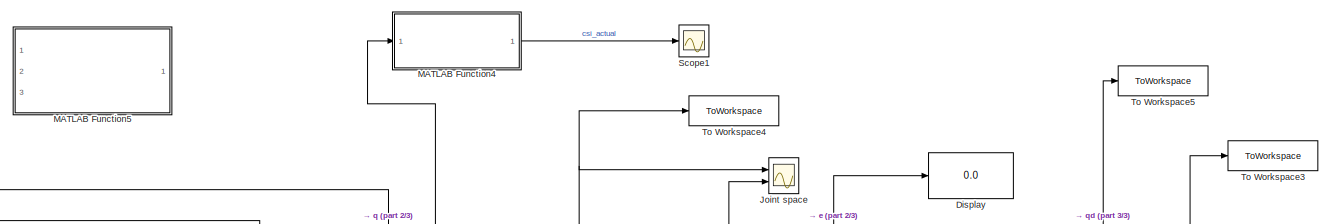
[diagram: root canvas - part 1/3, top center region]
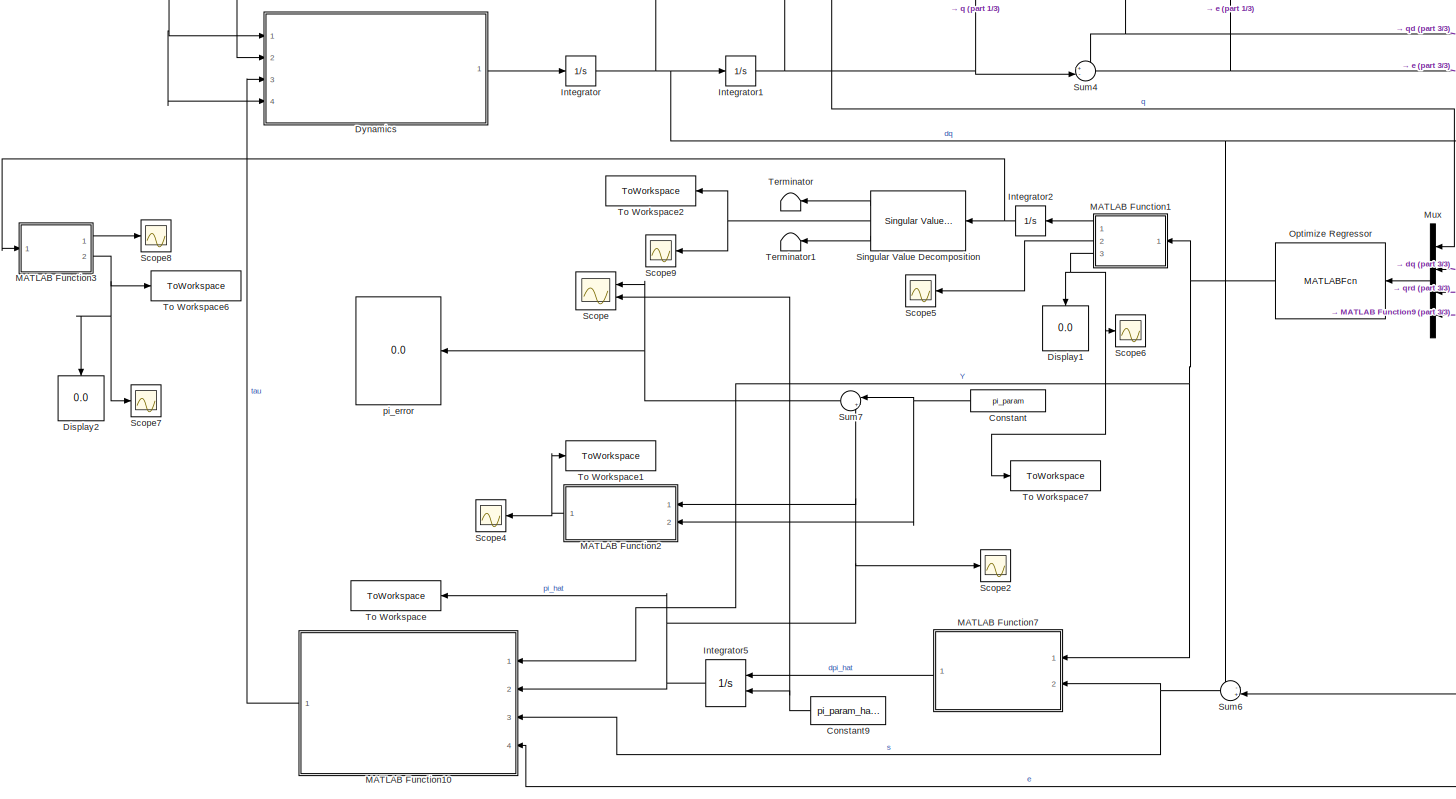
[diagram: root canvas - part 2/3, left side, full height]
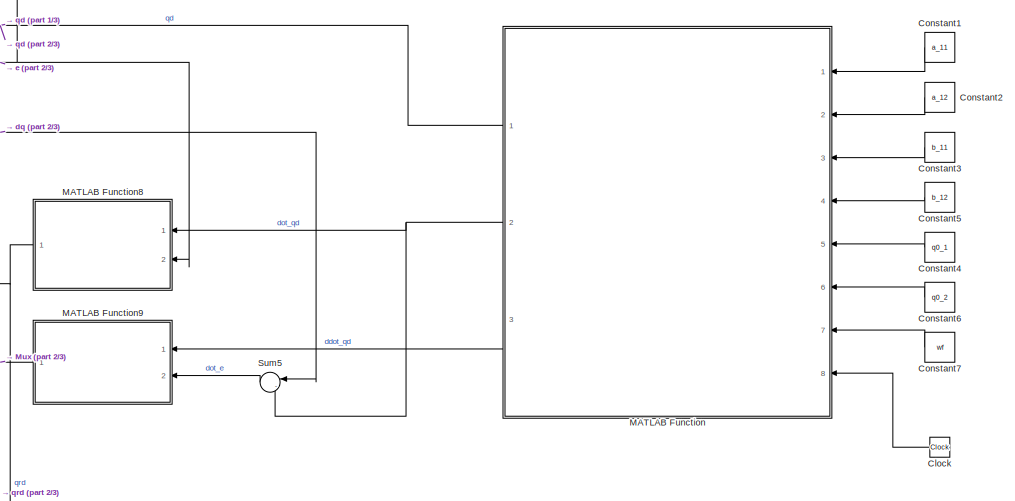
[diagram: root canvas - part 3/3, middle right region]
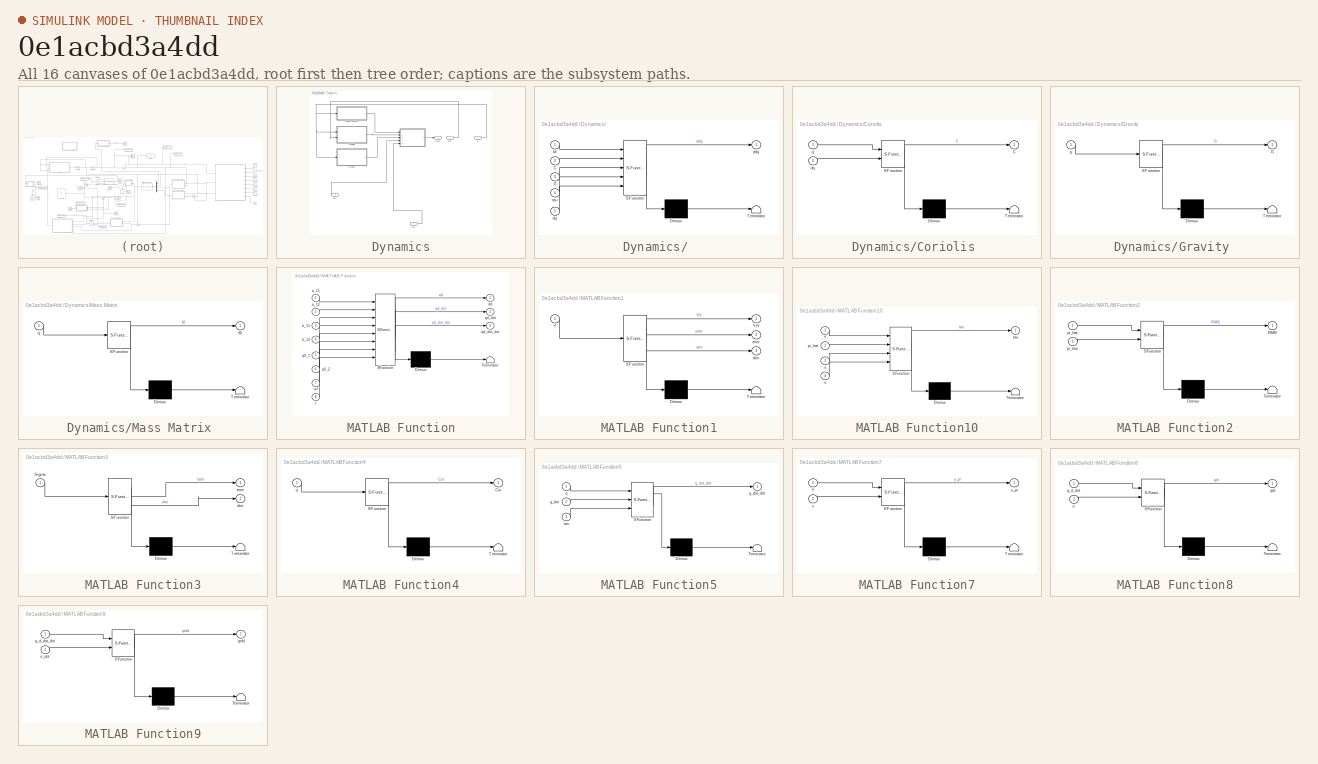
[diagram: thumbnail index - all 16 canvases of the model, root first then tree order]
MODEL slx_0e1acbd3a4dd
KIND model
CONFIG AbsTol = auto
CONFIG EnableMultiTasking = off
CONFIG FixedStep = 1e-2
CONFIG MaxStep = auto
CONFIG MinStep = auto
CONFIG RelTol = 1e-3
CONFIG SampleTimeConstraint = Unconstrained
CONFIG Solver = VariableStepAuto
CONFIG SolverName = VariableStepAuto
CONFIG StartTime = 0.0
CONFIG StopTime = 1000
BLOCK [Clock] Clock
BLOCK [Constant] Constant
  Value = pi_param
BLOCK [Constant] Constant1
  Value = a_11
BLOCK [Constant] Constant2
  Value = a_12
BLOCK [Constant] Constant3
  Value = b_11
BLOCK [Constant] Constant4
  Value = q0_1
BLOCK [Constant] Constant5
  Value = b_12
BLOCK [Constant] Constant6
  Value = q0_2
BLOCK [Constant] Constant7
  Value = wf
BLOCK [Constant] Constant9
  Value = pi_param_hat_0
BLOCK [Display] Display
  Decimation = 1
  Ports = [1]
BLOCK [Display] Display1
  Decimation = 1
  Ports = [1]
BLOCK [Display] Display2
  Decimation = 1
  Ports = [1]
BLOCK [SubSystem] Dynamics
  Ports = [4, 1]
  RequestExecContextInheritance = off
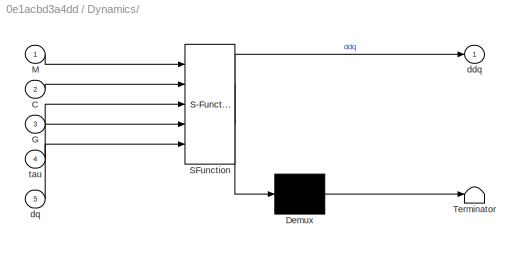
BLOCK [SubSystem] Dynamics/ 
  ErrorFcn = Stateflow.Translate.translate
  PermitHierarchicalResolution = ExplicitOnly
  Ports = [5, 1]
  RequestExecContextInheritance = off
  SFBlockType = MATLAB Function
  TreatAsAtomicUnit = on
BLOCK [Demux] Dynamics/ / Demux 
  DisplayOption = bar
  Outputs = 1
  Ports = [1, 1]
BLOCK [S-Function] Dynamics/ / SFunction 
  EnableBusSupport = on
  FunctionName = sf_sfun
  PortCounts = [5 2]
  Ports = [5, 2]
  SFcnIsStateOwnerBlock = off
  SFunctionDeploymentMode = off
  Tag = Stateflow S-Function 8
BLOCK [Terminator] Dynamics/ / Terminator 
BLOCK [Inport] Dynamics/ /C
  IconDisplay = Port number
  Port = 2
BLOCK [Inport] Dynamics/ /G
  IconDisplay = Port number
  Port = 3
BLOCK [Inport] Dynamics/ /M
  IconDisplay = Port number
BLOCK [Outport] Dynamics/ /ddq
  IconDisplay = Port number
BLOCK [Inport] Dynamics/ /dq
  IconDisplay = Port number
  Port = 5
BLOCK [Inport] Dynamics/ /tau
  IconDisplay = Port number
  Port = 4
BLOCK [SubSystem] Dynamics/Coriolis 
  ErrorFcn = Stateflow.Translate.translate
  PermitHierarchicalResolution = ExplicitOnly
  Ports = [2, 1]
  RequestExecContextInheritance = off
  SFBlockType = MATLAB Function
  TreatAsAtomicUnit = on
BLOCK [Demux] Dynamics/Coriolis / Demux 
  DisplayOption = bar
  Outputs = 1
  Ports = [1, 1]
BLOCK [S-Function] Dynamics/Coriolis / SFunction 
  EnableBusSupport = on
  FunctionName = sf_sfun
  PortCounts = [2 2]
  Ports = [2, 2]
  SFcnIsStateOwnerBlock = off
  SFunctionDeploymentMode = off
  Tag = Stateflow S-Function 6
BLOCK [Terminator] Dynamics/Coriolis / Terminator 
BLOCK [Outport] Dynamics/Coriolis /C
  IconDisplay = Port number
BLOCK [Inport] Dynamics/Coriolis /dq
  IconDisplay = Port number
  Port = 2
BLOCK [Inport] Dynamics/Coriolis /q
  IconDisplay = Port number
BLOCK [SubSystem] Dynamics/Gravity 
  ErrorFcn = Stateflow.Translate.translate
  PermitHierarchicalResolution = ExplicitOnly
  Ports = [1, 1]
  RequestExecContextInheritance = off
  SFBlockType = MATLAB Function
  TreatAsAtomicUnit = on
BLOCK [Demux] Dynamics/Gravity / Demux 
  DisplayOption = bar
  Outputs = 1
  Ports = [1, 1]
BLOCK [S-Function] Dynamics/Gravity / SFunction 
  EnableBusSupport = on
  FunctionName = sf_sfun
  PortCounts = [1 2]
  Ports = [1, 2]
  SFcnIsStateOwnerBlock = off
  SFunctionDeploymentMode = off
  Tag = Stateflow S-Function 7
BLOCK [Terminator] Dynamics/Gravity / Terminator 
BLOCK [Outport] Dynamics/Gravity /G
  IconDisplay = Port number
BLOCK [Inport] Dynamics/Gravity /q
  IconDisplay = Port number
BLOCK [SubSystem] Dynamics/Mass Matrix 
  ErrorFcn = Stateflow.Translate.translate
  PermitHierarchicalResolution = ExplicitOnly
  Ports = [1, 1]
  RequestExecContextInheritance = off
  SFBlockType = MATLAB Function
  TreatAsAtomicUnit = on
BLOCK [Demux] Dynamics/Mass Matrix / Demux 
  DisplayOption = bar
  Outputs = 1
  Ports = [1, 1]
BLOCK [S-Function] Dynamics/Mass Matrix / SFunction 
  EnableBusSupport = on
  FunctionName = sf_sfun
  PortCounts = [1 2]
  Ports = [1, 2]
  SFcnIsStateOwnerBlock = off
  SFunctionDeploymentMode = off
  Tag = Stateflow S-Function 4
BLOCK [Terminator] Dynamics/Mass Matrix / Terminator 
BLOCK [Outport] Dynamics/Mass Matrix /M
  IconDisplay = Port number
BLOCK [Inport] Dynamics/Mass Matrix /q
  IconDisplay = Port number
BLOCK [Outport] Dynamics/Out1
  IconDisplay = Port number
BLOCK [Inport] Dynamics/d_q
  IconDisplay = Port number
  Port = 4
BLOCK [Inport] Dynamics/dq
  IconDisplay = Port number
BLOCK [Inport] Dynamics/q
  IconDisplay = Port number
  Port = 2
BLOCK [Inport] Dynamics/tau
  IconDisplay = Port number
  Port = 3
BLOCK [Integrator] Integrator
  InitialCondition = qInitial_0
  Ports = [1, 1]
BLOCK [Integrator] Integrator1
  InitialCondition = [0,0]'
  Ports = [1, 1]
BLOCK [Integrator] Integrator2
  Ports = [1, 1]
BLOCK [Integrator] Integrator5
  InitialConditionSource = external
  Ports = [2, 1]
BLOCK [Scope] Joint space
  Floating = off
  NumInputPorts = 2
  Ports = [2]
  ScopeSpecificationString = Simulink.scopes.TimeScopeBlockCfg('CurrentConfiguration', extmgr.ConfigurationSet(extmgr.Configuration('Core','General UI',true,'FigureColor',[0.831372549019608 0.815686274509804 0.784313725490196]),extmgr.Configuration('Core','Source UI',true),extmgr.Configuration('Sources','WiredSimulink',true,'DataLoggingVariableName','ScopeData1'),extmgr.Configuration('Visuals','Time Domain',true,'SerializedDi...<+1944ch>
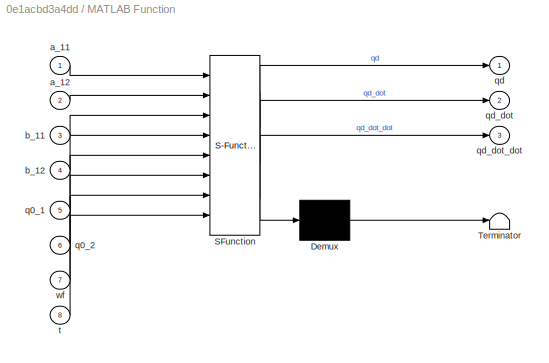
BLOCK [SubSystem] MATLAB Function
  ErrorFcn = Stateflow.Translate.translate
  PermitHierarchicalResolution = ExplicitOnly
  Ports = [8, 3]
  RequestExecContextInheritance = off
  SFBlockType = MATLAB Function
  TreatAsAtomicUnit = on
BLOCK [Demux] MATLAB Function/ Demux 
  DisplayOption = bar
  Outputs = 1
  Ports = [1, 1]
BLOCK [S-Function] MATLAB Function/ SFunction 
  EnableBusSupport = on
  FunctionName = sf_sfun
  PortCounts = [8 4]
  Ports = [8, 4]
  SFcnIsStateOwnerBlock = off
  SFunctionDeploymentMode = off
  Tag = Stateflow S-Function 2
BLOCK [Terminator] MATLAB Function/ Terminator 
BLOCK [Inport] MATLAB Function/a_11
  IconDisplay = Port number
BLOCK [Inport] MATLAB Function/a_12
  IconDisplay = Port number
  Port = 2
BLOCK [Inport] MATLAB Function/b_11
  IconDisplay = Port number
  Port = 3
BLOCK [Inport] MATLAB Function/b_12
  IconDisplay = Port number
  Port = 4
BLOCK [Inport] MATLAB Function/q0_1
  IconDisplay = Port number
  Port = 5
BLOCK [Inport] MATLAB Function/q0_2
  IconDisplay = Port number
  Port = 6
BLOCK [Outport] MATLAB Function/qd
  IconDisplay = Port number
BLOCK [Outport] MATLAB Function/qd_dot
  IconDisplay = Port number
  Port = 2
BLOCK [Outport] MATLAB Function/qd_dot_dot
  IconDisplay = Port number
  Port = 3
BLOCK [Inport] MATLAB Function/t
  IconDisplay = Port number
  Port = 8
BLOCK [Inport] MATLAB Function/wf
  IconDisplay = Port number
  Port = 7
BLOCK [SubSystem] MATLAB Function1
  ErrorFcn = Stateflow.Translate.translate
  PermitHierarchicalResolution = ExplicitOnly
  Ports = [1, 3]
  RequestExecContextInheritance = off
  SFBlockType = MATLAB Function
  TreatAsAtomicUnit = on
BLOCK [Demux] MATLAB Function1/ Demux 
  DisplayOption = bar
  Outputs = 1
  Ports = [1, 1]
BLOCK [S-Function] MATLAB Function1/ SFunction 
  EnableBusSupport = on
  FunctionName = sf_sfun
  PortCounts = [1 4]
  Ports = [1, 4]
  SFcnIsStateOwnerBlock = off
  SFunctionDeploymentMode = off
  Tag = Stateflow S-Function 1
BLOCK [Terminator] MATLAB Function1/ Terminator 
BLOCK [Inport] MATLAB Function1/Y
  IconDisplay = Port number
BLOCK [Outport] MATLAB Function1/YtY
  IconDisplay = Port number
BLOCK [Outport] MATLAB Function1/dim
  IconDisplay = Port number
  Port = 3
BLOCK [Outport] MATLAB Function1/error
  IconDisplay = Port number
  Port = 2
BLOCK [SubSystem] MATLAB Function10
  ErrorFcn = Stateflow.Translate.translate
  PermitHierarchicalResolution = ExplicitOnly
  Ports = [4, 1]
  RequestExecContextInheritance = off
  SFBlockType = MATLAB Function
  TreatAsAtomicUnit = on
BLOCK [Demux] MATLAB Function10/ Demux 
  DisplayOption = bar
  Outputs = 1
  Ports = [1, 1]
BLOCK [S-Function] MATLAB Function10/ SFunction 
  EnableBusSupport = on
  FunctionName = sf_sfun
  PortCounts = [4 2]
  Ports = [4, 2]
  SFcnIsStateOwnerBlock = off
  SFunctionDeploymentMode = off
  Tag = Stateflow S-Function 17
BLOCK [Terminator] MATLAB Function10/ Terminator 
BLOCK [Inport] MATLAB Function10/Y
  IconDisplay = Port number
BLOCK [Inport] MATLAB Function10/e
  IconDisplay = Port number
  Port = 4
BLOCK [Inport] MATLAB Function10/pi_hat
  IconDisplay = Port number
  Port = 2
BLOCK [Inport] MATLAB Function10/s
  IconDisplay = Port number
  Port = 3
BLOCK [Outport] MATLAB Function10/tau
  IconDisplay = Port number
BLOCK [SubSystem] MATLAB Function2
  ErrorFcn = Stateflow.Translate.translate
  PermitHierarchicalResolution = ExplicitOnly
  Ports = [2, 1]
  RequestExecContextInheritance = off
  SFBlockType = MATLAB Function
  TreatAsAtomicUnit = on
BLOCK [Demux] MATLAB Function2/ Demux 
  DisplayOption = bar
  Outputs = 1
  Ports = [1, 1]
BLOCK [S-Function] MATLAB Function2/ SFunction 
  EnableBusSupport = on
  FunctionName = sf_sfun
  PortCounts = [2 2]
  Ports = [2, 2]
  SFcnIsStateOwnerBlock = off
  SFunctionDeploymentMode = off
  Tag = Stateflow S-Function 3
BLOCK [Terminator] MATLAB Function2/ Terminator 
BLOCK [Outport] MATLAB Function2/RMS
  IconDisplay = Port number
BLOCK [Inport] MATLAB Function2/pi_hat
  IconDisplay = Port number
BLOCK [Inport] MATLAB Function2/pi_true
  IconDisplay = Port number
  Port = 2
BLOCK [SubSystem] MATLAB Function3
  ErrorFcn = Stateflow.Translate.translate
  PermitHierarchicalResolution = ExplicitOnly
  Ports = [1, 2]
  RequestExecContextInheritance = off
  SFBlockType = MATLAB Function
  TreatAsAtomicUnit = on
BLOCK [Demux] MATLAB Function3/ Demux 
  DisplayOption = bar
  Outputs = 1
  Ports = [1, 1]
BLOCK [S-Function] MATLAB Function3/ SFunction 
  EnableBusSupport = on
  FunctionName = sf_sfun
  PortCounts = [1 3]
  Ports = [1, 3]
  SFcnIsStateOwnerBlock = off
  SFunctionDeploymentMode = off
  Tag = Stateflow S-Function 9
BLOCK [Terminator] MATLAB Function3/ Terminator 
BLOCK [Inport] MATLAB Function3/Sigma
  IconDisplay = Port number
BLOCK [Outport] MATLAB Function3/dim
  IconDisplay = Port number
  Port = 2
BLOCK [Outport] MATLAB Function3/error
  IconDisplay = Port number
BLOCK [SubSystem] MATLAB Function4
  Commented = on
  ErrorFcn = Stateflow.Translate.translate
  PermitHierarchicalResolution = ExplicitOnly
  Ports = [1, 1]
  RequestExecContextInheritance = off
  SFBlockType = MATLAB Function
  TreatAsAtomicUnit = on
BLOCK [Demux] MATLAB Function4/ Demux 
  DisplayOption = bar
  Outputs = 1
  Ports = [1, 1]
BLOCK [S-Function] MATLAB Function4/ SFunction 
  EnableBusSupport = on
  FunctionName = sf_sfun
  PortCounts = [1 2]
  Ports = [1, 2]
  SFcnIsStateOwnerBlock = off
  SFunctionDeploymentMode = off
  Tag = Stateflow S-Function 13
BLOCK [Terminator] MATLAB Function4/ Terminator 
BLOCK [Outport] MATLAB Function4/Csi
  IconDisplay = Port number
BLOCK [Inport] MATLAB Function4/q
  IconDisplay = Port number
BLOCK [SubSystem] MATLAB Function5
  Commented = on
  ErrorFcn = Stateflow.Translate.translate
  PermitHierarchicalResolution = ExplicitOnly
  Ports = [3, 1]
  RequestExecContextInheritance = off
  SFBlockType = MATLAB Function
  TreatAsAtomicUnit = on
BLOCK [Demux] MATLAB Function5/ Demux 
  DisplayOption = bar
  Outputs = 1
  Ports = [1, 1]
BLOCK [S-Function] MATLAB Function5/ SFunction 
  EnableBusSupport = on
  FunctionName = sf_sfun
  PortCounts = [3 2]
  Ports = [3, 2]
  SFcnIsStateOwnerBlock = off
  SFunctionDeploymentMode = off
  Tag = Stateflow S-Function 5
BLOCK [Terminator] MATLAB Function5/ Terminator 
BLOCK [Inport] MATLAB Function5/q
  IconDisplay = Port number
BLOCK [Inport] MATLAB Function5/q_dot
  IconDisplay = Port number
  Port = 2
BLOCK [Outport] MATLAB Function5/q_dot_dot
  IconDisplay = Port number
BLOCK [Inport] MATLAB Function5/tau
  IconDisplay = Port number
  Port = 3
BLOCK [SubSystem] MATLAB Function7
  ErrorFcn = Stateflow.Translate.translate
  PermitHierarchicalResolution = ExplicitOnly
  Ports = [2, 1]
  RequestExecContextInheritance = off
  SFBlockType = MATLAB Function
  TreatAsAtomicUnit = on
BLOCK [Demux] MATLAB Function7/ Demux 
  DisplayOption = bar
  Outputs = 1
  Ports = [1, 1]
BLOCK [S-Function] MATLAB Function7/ SFunction 
  EnableBusSupport = on
  FunctionName = sf_sfun
  PortCounts = [2 2]
  Ports = [2, 2]
  SFcnIsStateOwnerBlock = off
  SFunctionDeploymentMode = off
  Tag = Stateflow S-Function 21
BLOCK [Terminator] MATLAB Function7/ Terminator 
BLOCK [Inport] MATLAB Function7/Y
  IconDisplay = Port number
BLOCK [Inport] MATLAB Function7/s
  IconDisplay = Port number
  Port = 2
BLOCK [Outport] MATLAB Function7/u_pi
  IconDisplay = Port number
BLOCK [SubSystem] MATLAB Function8
  ErrorFcn = Stateflow.Translate.translate
  PermitHierarchicalResolution = ExplicitOnly
  Ports = [2, 1]
  RequestExecContextInheritance = off
  SFBlockType = MATLAB Function
  TreatAsAtomicUnit = on
BLOCK [Demux] MATLAB Function8/ Demux 
  DisplayOption = bar
  Outputs = 1
  Ports = [1, 1]
BLOCK [S-Function] MATLAB Function8/ SFunction 
  EnableBusSupport = on
  FunctionName = sf_sfun
  PortCounts = [2 2]
  Ports = [2, 2]
  SFcnIsStateOwnerBlock = off
  SFunctionDeploymentMode = off
  Tag = Stateflow S-Function 22
BLOCK [Terminator] MATLAB Function8/ Terminator 
BLOCK [Inport] MATLAB Function8/e
  IconDisplay = Port number
  Port = 2
BLOCK [Inport] MATLAB Function8/q_d_dot
  IconDisplay = Port number
BLOCK [Outport] MATLAB Function8/qrd
  IconDisplay = Port number
BLOCK [SubSystem] MATLAB Function9
  ErrorFcn = Stateflow.Translate.translate
  PermitHierarchicalResolution = ExplicitOnly
  Ports = [2, 1]
  RequestExecContextInheritance = off
  SFBlockType = MATLAB Function
  TreatAsAtomicUnit = on
BLOCK [Demux] MATLAB Function9/ Demux 
  DisplayOption = bar
  Outputs = 1
  Ports = [1, 1]
BLOCK [S-Function] MATLAB Function9/ SFunction 
  EnableBusSupport = on
  FunctionName = sf_sfun
  PortCounts = [2 2]
  Ports = [2, 2]
  SFcnIsStateOwnerBlock = off
  SFunctionDeploymentMode = off
  Tag = Stateflow S-Function 23
BLOCK [Terminator] MATLAB Function9/ Terminator 
BLOCK [Inport] MATLAB Function9/e_dot
  IconDisplay = Port number
  Port = 2
BLOCK [Inport] MATLAB Function9/q_d_dot_dot
  IconDisplay = Port number
BLOCK [Outport] MATLAB Function9/qrdd
  IconDisplay = Port number
BLOCK [Mux] Mux
  DisplayOption = bar
  Ports = [4, 1]
BLOCK [MATLABFcn] Optimize Regressor 
  MATLABFcn = New_Regressor_Simulink
  Output1D = off
  OutputDimensions = [2,6]
  Ports = [1, 1]
BLOCK [Scope] Scope
  Floating = off
  NumInputPorts = 2
  Ports = [2]
  ScopeSpecificationString = Simulink.scopes.TimeScopeBlockCfg('CurrentConfiguration', extmgr.ConfigurationSet(extmgr.Configuration('Core','General UI',true),extmgr.Configuration('Core','Source UI',true),extmgr.Configuration('Sources','WiredSimulink',true,'DataLoggingVariableName','ScopeData1'),extmgr.Configuration('Visuals','Time Domain',true,'SerializedDisplays',{struct('MinYLimReal','-4.26788','MaxYLimReal','4.46359','YLab...<+1833ch>
BLOCK [Scope] Scope1
  Commented = on
  Floating = off
  NumInputPorts = 1
  Ports = [1]
  ScopeSpecificationString = Simulink.scopes.TimeScopeBlockCfg('CurrentConfiguration', extmgr.ConfigurationSet(extmgr.Configuration('Core','General UI',true),extmgr.Configuration('Core','Source UI',true),extmgr.Configuration('Sources','WiredSimulink',true,'DataLoggingVariableName','ScopeData1'),extmgr.Configuration('Visuals','Time Domain',true,'SerializedDisplays',{struct('MinYLimReal','-1.93609','MaxYLimReal','2.43734','YLab...<+1441ch>
BLOCK [Scope] Scope2
  Floating = off
  NumInputPorts = 1
  Ports = [1]
  ScopeSpecificationString = Simulink.scopes.TimeScopeBlockCfg('CurrentConfiguration', extmgr.ConfigurationSet(extmgr.Configuration('Core','General UI',true),extmgr.Configuration('Core','Source UI',true),extmgr.Configuration('Sources','WiredSimulink',true,'DataLoggingVariableName','ScopeData1'),extmgr.Configuration('Visuals','Time Domain',true,'SerializedDisplays',{struct('MinYLimReal','-4.83933','MaxYLimReal','4.39845','YLab...<+1584ch>
BLOCK [Scope] Scope4
  Floating = off
  NumInputPorts = 1
  Ports = [1]
  ScopeSpecificationString = Simulink.scopes.TimeScopeBlockCfg('CurrentConfiguration', extmgr.ConfigurationSet(extmgr.Configuration('Core','General UI',true),extmgr.Configuration('Core','Source UI',true),extmgr.Configuration('Sources','WiredSimulink',true,'DataLoggingVariableName','ScopeData2'),extmgr.Configuration('Visuals','Time Domain',true,'SerializedDisplays',{struct('MinYLimReal','-0.42601','MaxYLimReal','5.46095','YLab...<+1428ch>
BLOCK [Scope] Scope5
  Floating = off
  NumInputPorts = 1
  Ports = [1]
  ScopeSpecificationString = Simulink.scopes.TimeScopeBlockCfg('CurrentConfiguration', extmgr.ConfigurationSet(extmgr.Configuration('Core','General UI',true),extmgr.Configuration('Core','Source UI',true),extmgr.Configuration('Sources','WiredSimulink',true,'DataLoggingVariableName','ScopeData1'),extmgr.Configuration('Visuals','Time Domain',true,'SerializedDisplays',{struct('MinYLimReal','-0.125','MaxYLimReal','1.125','YLabelRe...<+1424ch>
BLOCK [Scope] Scope6
  Floating = off
  NumInputPorts = 1
  Ports = [1]
  ScopeSpecificationString = Simulink.scopes.TimeScopeBlockCfg('CurrentConfiguration', extmgr.ConfigurationSet(extmgr.Configuration('Core','General UI',true),extmgr.Configuration('Core','Source UI',true),extmgr.Configuration('Sources','WiredSimulink',true,'DataLoggingVariableName','ScopeData2'),extmgr.Configuration('Visuals','Time Domain',true,'SerializedDisplays',{struct('MinYLimReal','1.10009','MaxYLimReal','4.19491','YLabe...<+1455ch>
BLOCK [Scope] Scope7
  Floating = off
  NumInputPorts = 1
  Ports = [1]
  ScopeSpecificationString = Simulink.scopes.TimeScopeBlockCfg('CurrentConfiguration', extmgr.ConfigurationSet(extmgr.Configuration('Core','General UI',true),extmgr.Configuration('Core','Source UI',true),extmgr.Configuration('Sources','WiredSimulink',true,'DataLoggingVariableName','ScopeData1'),extmgr.Configuration('Visuals','Time Domain',true,'SerializedDisplays',{struct('MinYLimReal','-0.5','MaxYLimReal','4.5','YLabelReal',...<+1414ch>
BLOCK [Scope] Scope8
  Floating = off
  NumInputPorts = 1
  Ports = [1]
  ScopeSpecificationString = Simulink.scopes.TimeScopeBlockCfg('CurrentConfiguration', extmgr.ConfigurationSet(extmgr.Configuration('Core','General UI',true),extmgr.Configuration('Core','Source UI',true),extmgr.Configuration('Sources','WiredSimulink',true,'DataLoggingVariableName','ScopeData2'),extmgr.Configuration('Visuals','Time Domain',true,'SerializedDisplays',{struct('MinYLimReal','-0.125','MaxYLimReal','1.125','YLabelRe...<+1428ch>
BLOCK [Scope] Scope9
  Floating = off
  NumInputPorts = 1
  Ports = [1]
  ScopeSpecificationString = Simulink.scopes.TimeScopeBlockCfg('CurrentConfiguration', extmgr.ConfigurationSet(extmgr.Configuration('Core','General UI',true),extmgr.Configuration('Core','Source UI',true),extmgr.Configuration('Sources','WiredSimulink',true,'DataLoggingVariableName','ScopeData3'),extmgr.Configuration('Visuals','Time Domain',true,'SerializedDisplays',{struct('MinYLimReal','-941.52268','MaxYLimReal','1191.78111',...<+1770ch>
BLOCK [Reference] Singular Value Decomposition  REF=dspfactors/Singular Value
Decomposition
  Ports = [1, 3]
  SourceBlock = dspfactors/Singular Value\nDecomposition
  SourceProductBaseCode = DS
  SourceType = Singular Value Decomposition
BLOCK [Sum] Sum4
  IconShape = round
  InputSameDT = off
  Inputs = +-|
  OutDataTypeStr = Inherit: Inherit via internal rule
  Ports = [2, 1]
  SaturateOnIntegerOverflow = off
BLOCK [Sum] Sum5
  IconShape = round
  InputSameDT = off
  Inputs = |-+
  OutDataTypeStr = Inherit: Inherit via internal rule
  Ports = [2, 1]
  SaturateOnIntegerOverflow = off
BLOCK [Sum] Sum6
  IconShape = round
  InputSameDT = off
  Inputs = -+|
  OutDataTypeStr = Inherit: Inherit via internal rule
  Ports = [2, 1]
  SaturateOnIntegerOverflow = off
BLOCK [Sum] Sum7
  IconShape = round
  InputSameDT = off
  Inputs = |+-
  OutDataTypeStr = Inherit: Inherit via internal rule
  Ports = [2, 1]
  SaturateOnIntegerOverflow = off
BLOCK [Terminator] Terminator
BLOCK [Terminator] Terminator1
BLOCK [ToWorkspace] To Workspace
  FixptAsFi = on
  MaxDataPoints = inf
  Ports = [1]
  SampleTime = -1
  SaveFormat = Timeseries
  VariableName = PI
BLOCK [ToWorkspace] To Workspace1
  FixptAsFi = on
  MaxDataPoints = inf
  Ports = [1]
  SampleTime = -1
  SaveFormat = Timeseries
  VariableName = Norm
BLOCK [ToWorkspace] To Workspace2
  FixptAsFi = on
  MaxDataPoints = inf
  Ports = [1]
  SampleTime = -1
  SaveFormat = Timeseries
  VariableName = SVD
BLOCK [ToWorkspace] To Workspace3
  FixptAsFi = on
  MaxDataPoints = inf
  Ports = [1]
  SampleTime = -1
  SaveFormat = Timeseries
  VariableName = err
BLOCK [ToWorkspace] To Workspace4
  FixptAsFi = on
  MaxDataPoints = inf
  Ports = [1]
  SampleTime = -1
  SaveFormat = Timeseries
  VariableName = q_out
BLOCK [ToWorkspace] To Workspace5
  FixptAsFi = on
  MaxDataPoints = inf
  Ports = [1]
  SampleTime = -1
  SaveFormat = Timeseries
  VariableName = x_des
BLOCK [ToWorkspace] To Workspace6
  FixptAsFi = on
  MaxDataPoints = inf
  Ports = [1]
  SampleTime = -1
  SaveFormat = Timeseries
  VariableName = dimKerIntYtY
BLOCK [ToWorkspace] To Workspace7
  FixptAsFi = on
  MaxDataPoints = inf
  Ports = [1]
  SampleTime = -1
  SaveFormat = Timeseries
  VariableName = dimKerYtY
BLOCK [Display] pi_error
  Decimation = 1
  Ports = [1]
LINE Clock:1 -> MATLAB Function:8
LINE Constant1:1 -> MATLAB Function:1
LINE Constant2:1 -> MATLAB Function:2
LINE Constant3:1 -> MATLAB Function:3
LINE Constant4:1 -> MATLAB Function:5
LINE Constant5:1 -> MATLAB Function:4
LINE Constant6:1 -> MATLAB Function:6
LINE Constant7:1 -> MATLAB Function:7
NET Constant9:1 -> Integrator5:2, Scope:2
NET Constant:1 -> MATLAB Function2:2, Sum7:1
LINE Dynamics/ :1 -> Dynamics/Out1:1
LINE Dynamics/Coriolis :1 -> Dynamics/ :2
LINE Dynamics/Gravity :1 -> Dynamics/ :3
LINE Dynamics/Mass Matrix :1 -> Dynamics/ :1
LINE Dynamics/d_q:1 -> Dynamics/ :5
LINE Dynamics/dq:1 -> Dynamics/Coriolis :2
NET Dynamics/q:1 -> Dynamics/Coriolis :1, Dynamics/Gravity :1, Dynamics/Mass Matrix :1
LINE Dynamics/tau:1 -> Dynamics/ :4
LINE Dynamics:1 -> Integrator:1
NET Integrator1:1 -> Dynamics:2, Joint space:1, MATLAB Function4:1, Mux:1, Sum4:2, To Workspace4:1
NET Integrator2:1 -> MATLAB Function3:1, Singular Value Decomposition:1
NET Integrator5:1 -> MATLAB Function10:2, MATLAB Function2:1, Scope2:1, Sum7:2, To Workspace:1
NET Integrator:1 -> Dynamics:1, Dynamics:4, Integrator1:1, Mux:2, Sum5:1, Sum6:1
LINE MATLAB Function10:1 -> Dynamics:3
LINE MATLAB Function1:1 -> Integrator2:1
LINE MATLAB Function1:2 -> Scope5:1
NET MATLAB Function1:3 -> Display1:1, Scope6:1, To Workspace7:1
NET MATLAB Function2:1 -> Scope4:1, To Workspace1:1
LINE MATLAB Function3:1 -> Scope8:1
NET MATLAB Function3:2 -> Display2:1, Scope7:1, To Workspace6:1
LINE MATLAB Function4:1 -> Scope1:1
LINE MATLAB Function7:1 -> Integrator5:1
NET MATLAB Function8:1 -> Mux:3, Sum6:2
LINE MATLAB Function9:1 -> Mux:4
NET MATLAB Function:1 -> Joint space:2, Sum4:1, To Workspace5:1
NET MATLAB Function:2 -> MATLAB Function8:1, Sum5:2
LINE MATLAB Function:3 -> MATLAB Function9:1
LINE Mux:1 -> Optimize Regressor :1
NET Optimize Regressor :1 -> MATLAB Function10:1, MATLAB Function1:1, MATLAB Function7:1
LINE Singular Value Decomposition:1 -> Terminator:1
NET Singular Value Decomposition:2 -> Scope9:1, To Workspace2:1
LINE Singular Value Decomposition:3 -> Terminator1:1
NET Sum4:1 -> Display:1, MATLAB Function10:4, MATLAB Function8:2, To Workspace3:1
LINE Sum5:1 -> MATLAB Function9:2
NET Sum6:1 -> MATLAB Function10:3, MATLAB Function7:2
NET Sum7:1 -> Scope:1, pi_error:1
note: NET lines group one-source signal fan-out (src -> all destinations, sorted); 1:1 wires keep LINE
CHART MATLAB Function1 states=1 transitions=1
  STATE_LABEL 'eML_blk_kernel()'
  STATE_LABEL "SCRIPT:\nfunction [YtY, error,dim] = fcn(Y)\n\nYtY = Y.'*Y;\n\nerror = 0;\nker = null(YtY);\ndim = 0;\n\nif ker~=0 \n    error = 1;\n    dim = rank(ker);\nend\n\n"
CHART MATLAB Function states=1 transitions=1
  STATE_LABEL 'eML_blk_kernel()'
  STATE_LABEL 'SCRIPT:\nfunction [qd,qd_dot,qd_dot_dot] = De_Luca_Fourier(a_11,a_12,b_11,b_12,q0_1,q0_2,wf,t)\n\n\nqd1 = q0_1 - (b_11*cos(t*wf))/wf + (a_11*sin(t*wf))/wf;\nqd2 = q0_2 - (b_12*cos(t*wf))/wf + (a_12*sin(t*wf))/wf;\n\nqd = [qd1;qd2];\n\n\nqd_dot1 = a_11*cos(t*wf) + b_11*sin(t*wf);\nqd_dot2 = a_12*cos(t*wf) + b_12*sin(t*wf);\n\nqd_dot = [qd_dot1; qd_dot2];\n\nqd_dot_dot1 = b_11*wf*cos(t*wf) - a_11*wf*sin(t*wf);\nqd_...<+91ch>'
CHART MATLAB Function2 states=1 transitions=1
  STATE_LABEL 'eML_blk_kernel()'
  STATE_LABEL 'SCRIPT:\nfunction RMS = Norm(pi_hat,pi_true)\n\nRMS = norm(pi_true - pi_hat);\n'
CHART Dynamics/Mass Matrix
 states=1 transitions=1
  STATE_LABEL 'eML_blk_kernel()'
  STATE_LABEL 'SCRIPT:\nfunction M = RR_mass_matrix(q)\n\n% Basic params\ng = 9.81;\n\n% Manipulator params\nm1 = 1;\nm2 = 1;\n\na1=1;\na2=1;\n\nl1=a1/2;\nl2=a2/2;\n\nIzz1 = (1/12)*m1*a1^2;\nIzz2 = (1/12)*m2*a2^2;\n\n% Basic expressions for dynamics\nAlpha = Izz1 + Izz2 + m1*(l1)^2 + m2*(a1^2+l2^2);\nBeta = m2*a1*l2;\nDelta = Izz2 +m2*l2^2;\n\n% Mass matrix\nM = [Alpha + 2* Beta *cos(q(2)), Delta + Beta *cos(q(2));\n     Delta + Beta *co...<+26ch>'
CHART MATLAB Function5 states=1 transitions=1
  STATE_LABEL 'eML_blk_kernel()'
  STATE_LABEL 'SCRIPT:\nfunction q_dot_dot = Forward_Dynamics(q,q_dot,tau)\n\nq1 = q(1);\nq2 = q(2);\ndq1 = q_dot(1);\ndq2 = q_dot(2);\n%Properties of the manipulator\n\nm1 = 1;%links mass\nm2 = 1;\n\ng = 9.81; %gravity\n\n%COM\n\nl1=0.5;\nl2=0.5;\n\n%lenght of the links\n\na1 = 1;\na2 = 1;\n\n%Inertia respect to the center of mass \n\nIzz1 = (1/12)*m1*l1^2;\nIzz2 = (1/12)*m2*l2^2;\n\n%Inertia Matrix \n\nb11 = Izz1 + Izz2 + m1*l1^2 + m2*(a1^2...<+389ch>'
CHART Dynamics/Coriolis  states=1 transitions=1
  STATE_LABEL 'eML_blk_kernel()'
  STATE_LABEL 'SCRIPT:\nfunction C = RR_coriolis_matrix(q, dq)\n\n% Basic params\ng = 9.81;\n\n% Manipulator params\nm1 = 1;\nm2 = 1;\n\na1=1;\na2=1;\n\nl1=a1/2;\nl2=a2/2;\n\nIzz1 = (1/12)*m1*a1^2;\nIzz2 = (1/12)*m2*a2^2;\n\n% Basic expressions for dynamics\nAlpha = Izz1 + Izz2 + m1*(l1)^2 + m2*(a1^2+l2^2);\nBeta = m2*a1*l2;\nDelta = Izz2 +m2*l2^2;\n\n% Coriolis matrix\nC = [-Beta*sin(q(2))*dq(2), -Beta*sin(q(2))*(dq(1)+dq(2));\n     Bet...<+31ch>'
CHART Dynamics/Gravity
 states=1 transitions=1
  STATE_LABEL 'eML_blk_kernel()'
  STATE_LABEL 'SCRIPT:\nfunction G = RR_gravity_vector(q)\n\n% Basic params\ng = 9.81;\n\n% Manipulator params\nm1 = 1;\nm2 = 1;\n\na1=1;\na2=1;\n\nl1=a1/2;\nl2=a2/2;\n\nIzz1 = (1/12)*m1*a1^2;\nIzz2 = (1/12)*m2*a2^2;\n\n% Basic expressions for dynamics\nAlpha = Izz1 + Izz2 + m1*(l1)^2 + m2*(a1^2+l2^2);\nBeta = m2*a1*l2;\nDelta = Izz2 +m2*l2^2;\n\n% Gravity vector\nG = [m1*g*l1*cos(q(1)) + m2*g*(a1*cos(q(1)) + l2*cos(q(1)+q(2)));\n    m2*...<+28ch>'
CHART Dynamics/  states=1 transitions=1
  STATE_LABEL 'eML_blk_kernel()'
  STATE_LABEL 'SCRIPT:\nfunction ddq = Acceleration(M,C,G,tau,dq)\n\nddq = inv(M)*(tau - C*dq - G);\n'
CHART MATLAB Function3 states=1 transitions=1
  STATE_LABEL 'eML_blk_kernel()'
  STATE_LABEL 'SCRIPT:\nfunction [error,dim] = fcn(Sigma)\n\nker = null(Sigma);\ndim = 0;\nerror=0;\n\nif ker~=0 \n    error = 1;\n    dim = rank(ker);\nend\nend'
CHART MATLAB Function4 states=1 transitions=1
  STATE_LABEL 'eML_blk_kernel()'
  STATE_LABEL "SCRIPT:\nfunction Csi  = Direct_Kinematics_RR(q)\n\n%INPUT: q(1) = q1;\n%       q(2) = q2;\n\n%OUTPUT: px = position along x axis\n%        py = position along y axis\n\n%Link's lenght\n\nl1 = 1;\nl2 = 1;\n\npx = l1 * cos(q(1)) + l2 * cos(q(1)+q(2));\npy = l1 * sin(q(1)) + l2 * sin(q(1)+q(2));\n\nCsi = [px; py];\nend"
CHART MATLAB Function10 states=1 transitions=1
  STATE_LABEL 'eML_blk_kernel()'
  STATE_LABEL 'SCRIPT:\nfunction tau = Back_Stepping_Control_Law(Y,pi_hat,s,e)\n\nKd = 12 * eye(2);\nKp = 15 * eye(2);\n\ntau = Y * pi_hat + Kd * s + Kp * e;\n\nend'
CHART MATLAB Function7 states=1 transitions=1
  STATE_LABEL 'eML_blk_kernel()'
  STATE_LABEL "SCRIPT:\nfunction u_pi = Update_Law(Y,s)\n\nR = 40 * eye(6,6);\nu_pi = inv(R)*(Y')*s;\nend\n\n\n"
CHART MATLAB Function8 states=1 transitions=1
  STATE_LABEL 'eML_blk_kernel()'
  STATE_LABEL 'SCRIPT:\nfunction qrd = q_r_dot(q_d_dot,e)\n\nlambda = 7 * eye(2);\nqrd = q_d_dot + lambda * e;\n\nend\n\n'
CHART MATLAB Function9 states=1 transitions=1
  STATE_LABEL 'eML_blk_kernel()'
  STATE_LABEL 'SCRIPT:\nfunction qrdd = q_r_dot_dot(q_d_dot_dot,e_dot)\n\nlambda = 7 * eye(2);\nqrdd = q_d_dot_dot + lambda*e_dot;\n\nend\n\n'
